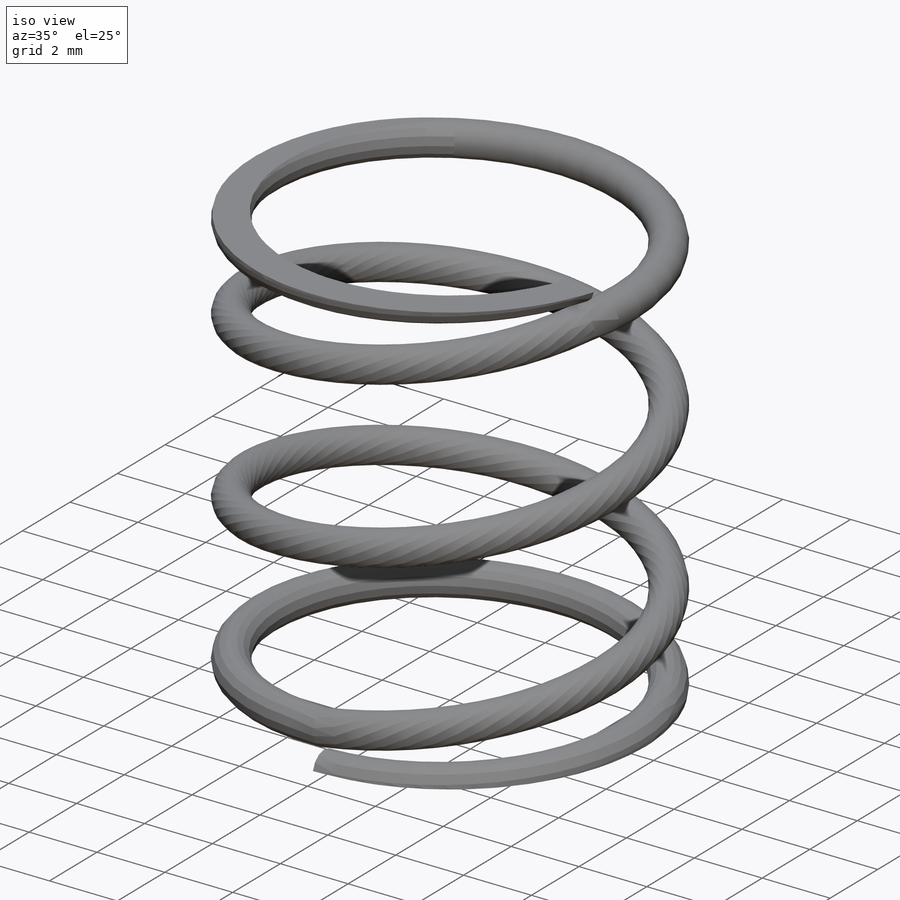
[diagram: iso view]
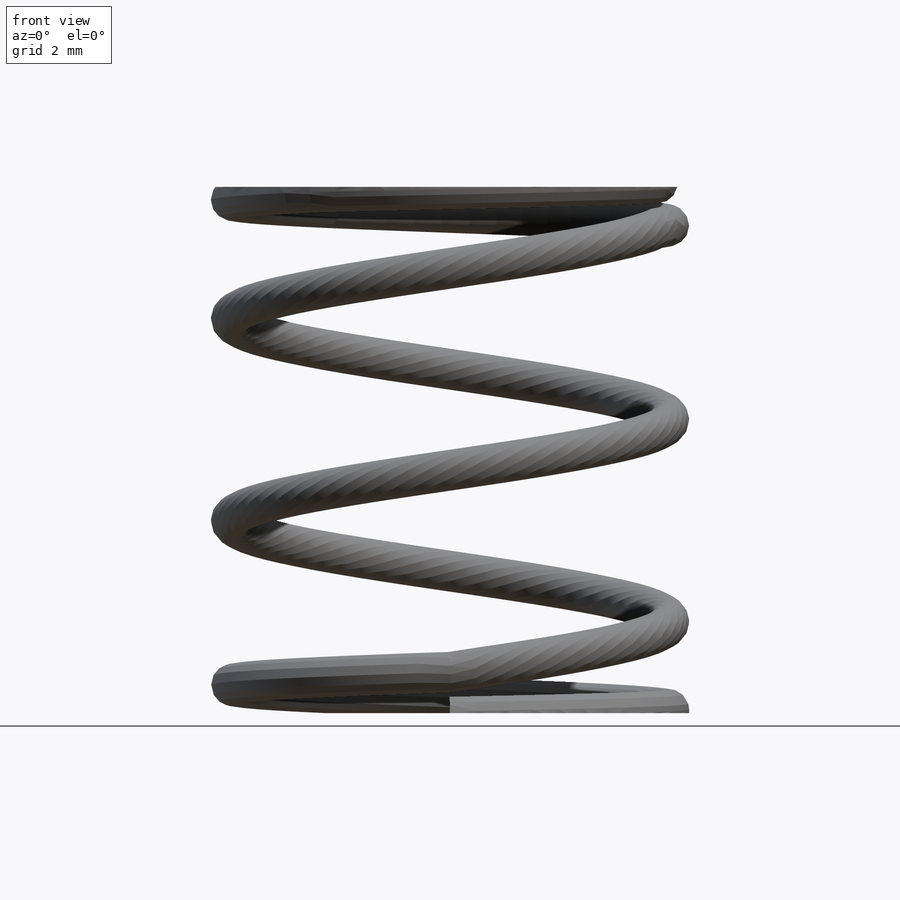
[diagram: front view]
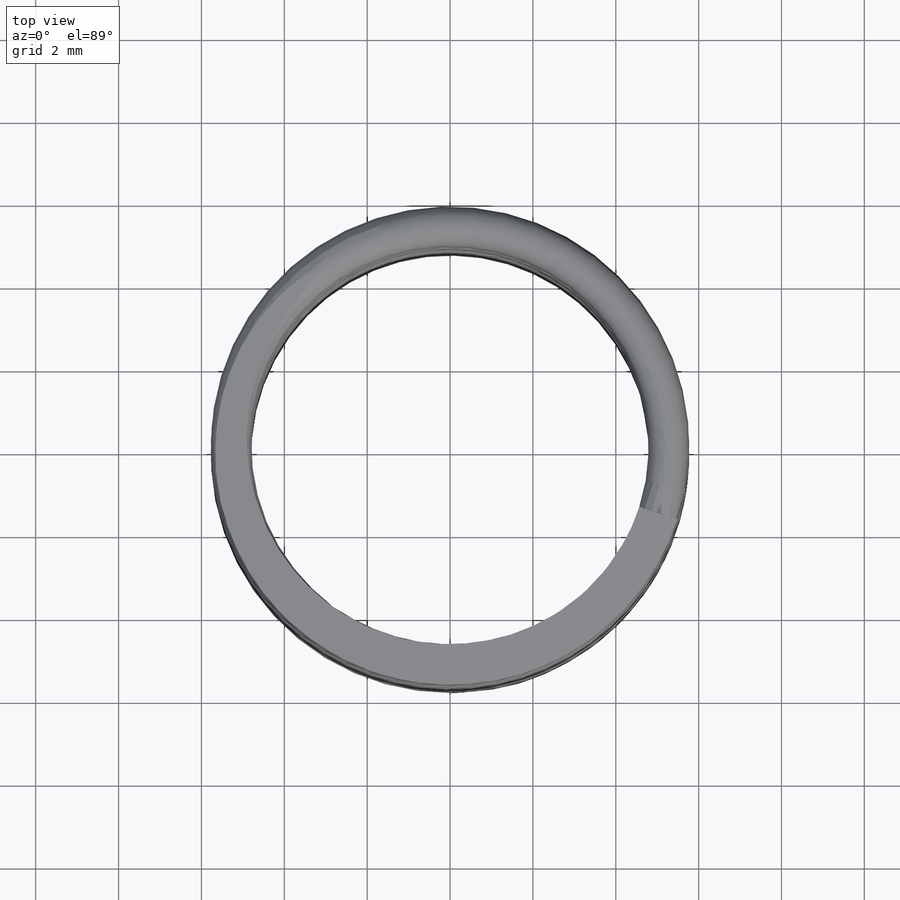
[diagram: top view]
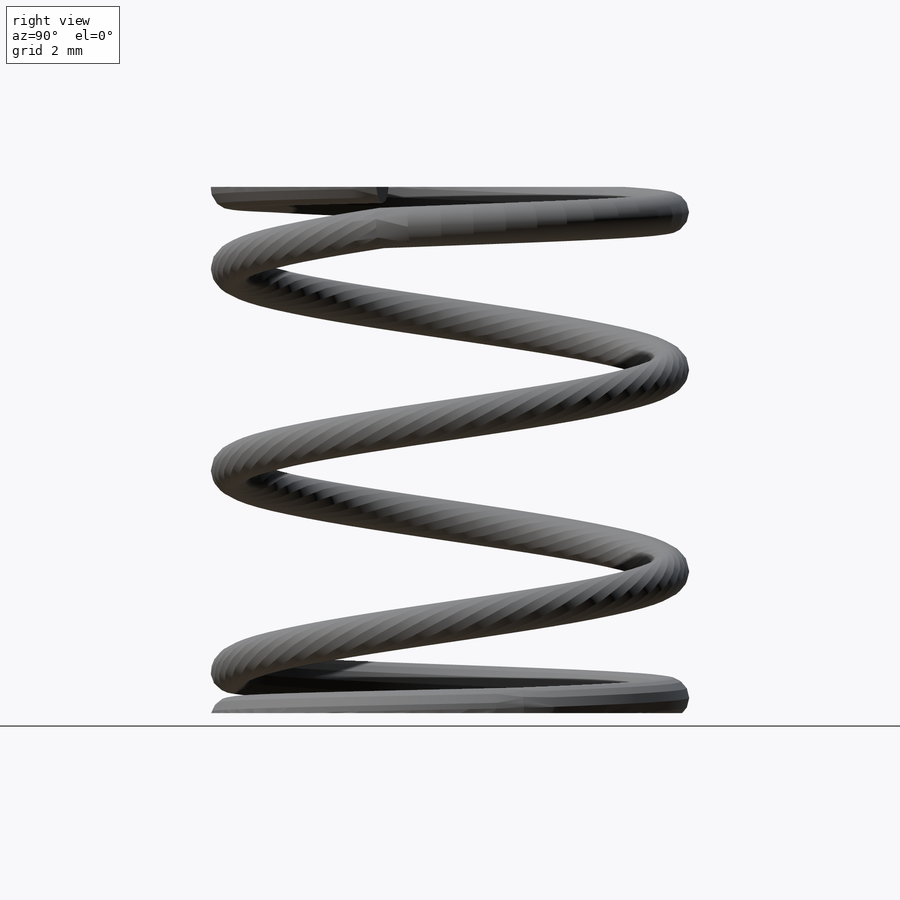
[diagram: right view]
SOLIDWORKS PART (.sldprt)
format: sldprt  version: not decoded by parser v0  size: 931,840 bytes
history: native  units: mm
features: sketch x10, plane x7, helix x5, material x1, sweep x1, cut_extrude x1 (+14 scaffold rows collapsed)
feature tree (39):
  scaffold x14  (default folders/planes/origin — collapsed)
  material  "Material <not specified>"
  sketch  "Sketch-Diam-Spring"  dims[Diam-Spring=10.57mm]
  sketch  "Support-Top"  dims[Data-Diam-Spring=9.58mm]
  sketch  "Support-Front"  dims[Data-Diam-Spring-Profile=0.99mm Data-Length-Spring=12.7mm Data-Length-Spring-Compressed=12.7mm Data-Num-Rotations-Total=4.2mm Data-Pitch=~4.872727mm]
  helix  "Helix-Main"  Pitch=10.720001mm Num-Rotations=2.2 Start-Angle=0deg
  plane  "Plane-Bottom1"
  plane  "Plane-Top1"
  sketch  "Sketch-Top"
  plane  "Plane-Start"
  plane  "Plane-End"
  helix  "Helix2"  Pitch=0.86625mm Pitch-Helix-2=1.2375mm Num-Rotations-Helix2=0.7 Start-Angle=72.000057deg
  sketch  "Sketch4"
  sketch  "Sketch2"  dims[D1=0.5mm]
  plane  "Plane-Top2"
  sketch  "Sketch3"
  helix  "Helix3"  Pitch=0.22275mm Pitch-Helix3=0.7425mm Num-Rotations-Helix3=0.3 Start-Angle=324.000057deg
  helix  "Helix4"  Pitch=0.86625mm
  plane  "Plane-Bottom2"
  sketch  "Sketch5"
  helix  "Helix5"  Pitch=0.22275mm Start-Angle=108deg
  plane  "Plane5"
  sketch  "Sketch-Spring-Thread-Profile"  dims[D1=0.9801mm]
  sweep  "Base-Sweep"
  sketch  "Sketch7"  dims[D1=12.7mm D2=~24.104197mm]
  cut_extrude  "Cut-Compressed"  Depth=0.5mm Rad-Shrink=0.5mm Angle-Shrink=15deg Rad-Bend=0.440625mm Height-Hook=1.7625mm Angle-End-Hook=90deg Gap-End-Hook=0.25mm Angle-Transition-Hook=52.875deg Rad-Hook=1.624113mm Start-Angle-Helix2=180deg
decode coverage: 12 of 17 modeling features carry decoded parameters
note: ~ marks probable driven/reference dimensions
note: suppression state not decoded; provenance and decode notes live in map.json
